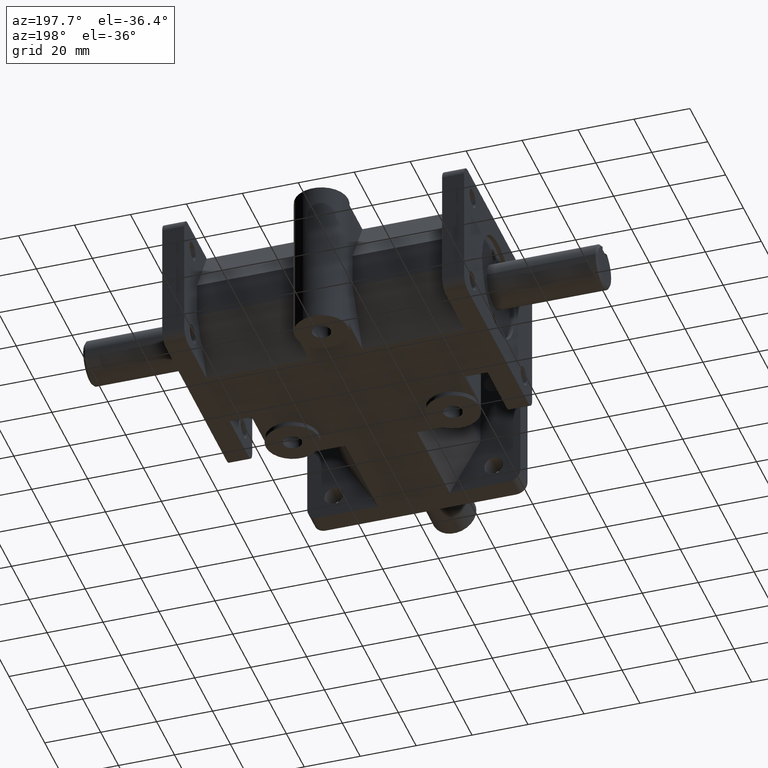
[diagram: clean part render]
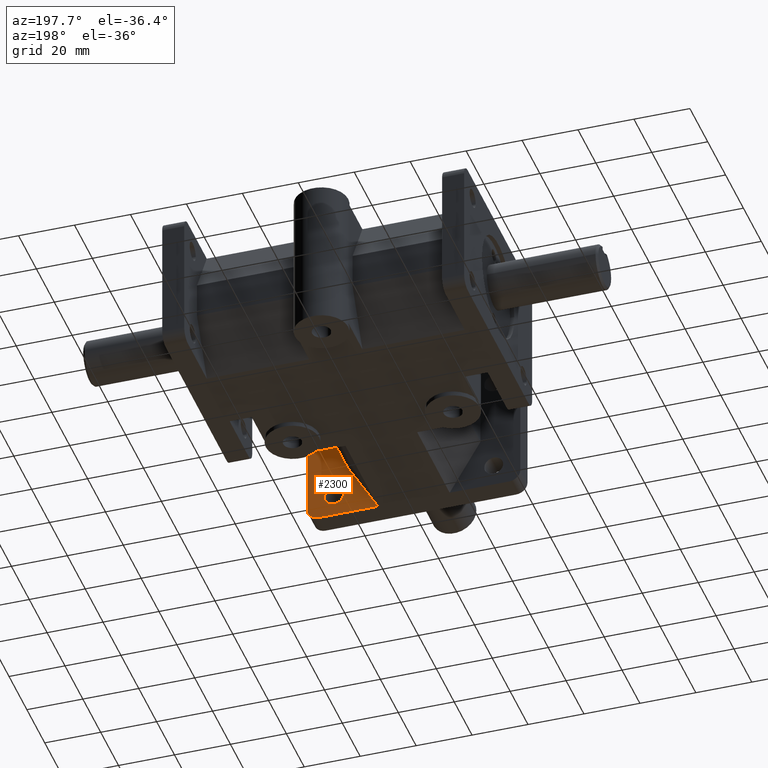
[diagram: same view with one face highlighted and labeled with its STEP entity id]
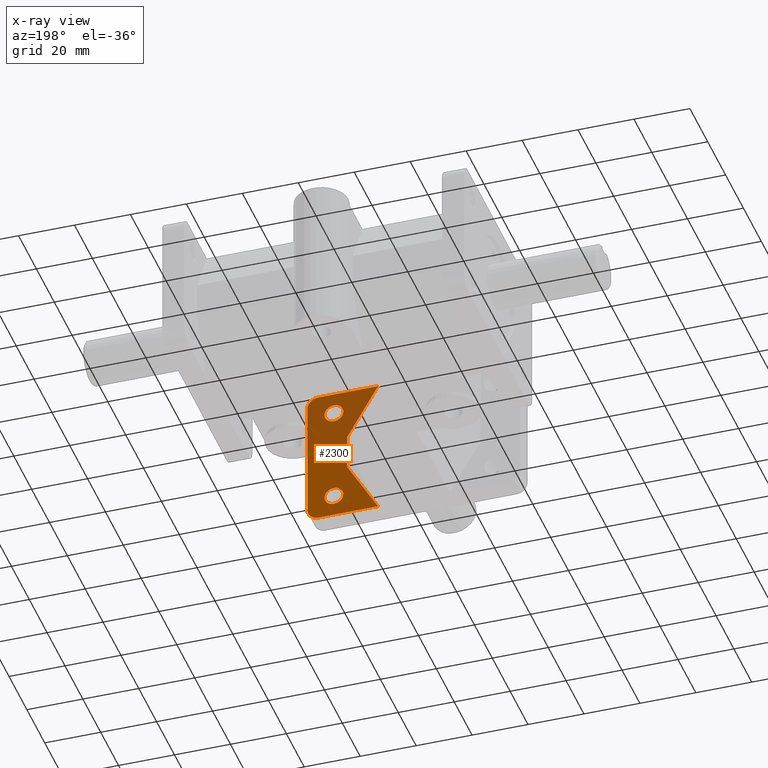
[diagram: x-ray of the same camera — body ghosted, the highlighted face saturated]
A machine part, auxiliary view. The second image highlights one B-rep face of the part: STEP entity #2300.
The next image is the same camera in x-ray: the body ghosted, the highlighted face saturated — about 46% of this face is hidden behind the body in this view.
In plain terms, the highlighted planar face has unit normal (0, 1, 0).
Its self-contained STEP definition (entity closure, byte-faithful):
#36=FACE_BOUND('',#322,.T.);
#37=FACE_BOUND('',#323,.T.);
#79=PLANE('',#2490);
#181=FACE_OUTER_BOUND('',#321,.T.);
#321=EDGE_LOOP('',(#1669,#1670,#1671,#1672,#1673,#1674,#1675,#1676));
#322=EDGE_LOOP('',(#1677));
#323=EDGE_LOOP('',(#1678));
#491=LINE('',#3536,#713);
#492=LINE('',#3538,#714);
#493=LINE('',#3540,#715);
#494=LINE('',#3542,#716);
#495=LINE('',#3543,#717);
#496=LINE('',#3544,#718);
#713=VECTOR('',#2846,1.);
#714=VECTOR('',#2847,0.999999999999999);
#715=VECTOR('',#2848,1.);
#716=VECTOR('',#2849,0.999999999999999);
#717=VECTOR('',#2850,1.);
#718=VECTOR('',#2851,1.);
#922=CIRCLE('',#2459,0.16);
#924=CIRCLE('',#2462,0.16);
#943=CIRCLE('',#2491,0.1325);
#944=CIRCLE('',#2492,0.1325);
#1033=VERTEX_POINT('',#3433);
#1034=VERTEX_POINT('',#3435);
#1037=VERTEX_POINT('',#3442);
#1038=VERTEX_POINT('',#3444);
#1077=VERTEX_POINT('',#3535);
#1078=VERTEX_POINT('',#3537);
#1079=VERTEX_POINT('',#3539);
#1080=VERTEX_POINT('',#3541);
#1081=VERTEX_POINT('',#3545);
#1082=VERTEX_POINT('',#3547);
#1263=EDGE_CURVE('',#1033,#1034,#922,.T.);
#1267=EDGE_CURVE('',#1037,#1038,#924,.T.);
#1309=EDGE_CURVE('',#1033,#1077,#491,.T.);
#1310=EDGE_CURVE('',#1078,#1077,#492,.F.);
#1311=EDGE_CURVE('',#1079,#1078,#493,.T.);
#1312=EDGE_CURVE('',#1080,#1079,#494,.F.);
#1313=EDGE_CURVE('',#1080,#1038,#495,.T.);
#1314=EDGE_CURVE('',#1034,#1037,#496,.T.);
#1315=EDGE_CURVE('',#1081,#1081,#943,.T.);
#1316=EDGE_CURVE('',#1082,#1082,#944,.T.);
#1669=ORIENTED_EDGE('',*,*,#1263,.F.);
#1670=ORIENTED_EDGE('',*,*,#1309,.T.);
#1671=ORIENTED_EDGE('',*,*,#1310,.F.);
#1672=ORIENTED_EDGE('',*,*,#1311,.F.);
#1673=ORIENTED_EDGE('',*,*,#1312,.F.);
#1674=ORIENTED_EDGE('',*,*,#1313,.T.);
#1675=ORIENTED_EDGE('',*,*,#1267,.F.);
#1676=ORIENTED_EDGE('',*,*,#1314,.F.);
#1677=ORIENTED_EDGE('',*,*,#1315,.T.);
#1678=ORIENTED_EDGE('',*,*,#1316,.T.);
#2300=ADVANCED_FACE('',(#181,#36,#37),#79,.T.);
#2459=AXIS2_PLACEMENT_3D('',#3436,#2757,#2758);
#2462=AXIS2_PLACEMENT_3D('',#3445,#2765,#2766);
#2490=AXIS2_PLACEMENT_3D('',#3534,#2844,#2845);
#2491=AXIS2_PLACEMENT_3D('',#3546,#2852,#2853);
#2492=AXIS2_PLACEMENT_3D('',#3548,#2854,#2855);
#2757=DIRECTION('center_axis',(0.,-1.,0.));
#2758=DIRECTION('ref_axis',(0.707106781186548,0.,-0.707106781186548));
#2765=DIRECTION('center_axis',(0.,-1.,0.));
#2766=DIRECTION('ref_axis',(0.707106781186548,0.,0.707106781186548));
#2844=DIRECTION('center_axis',(0.,1.,0.));
#2845=DIRECTION('ref_axis',(0.,0.,-1.));
#2846=DIRECTION('',(-1.,0.,0.));
#2847=DIRECTION('',(0.500000258168844,0.,0.866025254730536));
#2848=DIRECTION('',(0.,0.,-1.));
#2849=DIRECTION('',(-0.500000258168844,0.,0.866025254730536));
#2850=DIRECTION('',(1.,0.,0.));
#2851=DIRECTION('',(0.,0.,1.));
#2852=DIRECTION('center_axis',(0.,-1.,0.));
#2853=DIRECTION('ref_axis',(1.,0.,0.));
#2854=DIRECTION('center_axis',(0.,-1.,0.));
#2855=DIRECTION('ref_axis',(1.,0.,0.));
#3433=CARTESIAN_POINT('',(1.34,0.31,-1.));
#3435=CARTESIAN_POINT('',(1.5,0.31,-0.84));
#3436=CARTESIAN_POINT('Origin',(1.34,0.31,-0.84));
#3442=CARTESIAN_POINT('',(1.5,0.31,0.84));
#3444=CARTESIAN_POINT('',(1.34,0.31,1.));
#3445=CARTESIAN_POINT('Origin',(1.34,0.31,0.84));
#3534=CARTESIAN_POINT('Origin',(1.5,0.31,0.));
#3535=CARTESIAN_POINT('',(0.504487,0.31,-1.));
#3536=CARTESIAN_POINT('',(0.75,0.31,-1.));
#3537=CARTESIAN_POINT('',(0.9375,0.31,-0.25));
#3538=CARTESIAN_POINT('',(0.953685928978257,0.31,-0.221965167942549));
#3539=CARTESIAN_POINT('',(0.9375,0.31,0.25));
#3540=CARTESIAN_POINT('',(0.9375,0.31,0.));
#3541=CARTESIAN_POINT('',(0.504487,0.31,1.));
#3542=CARTESIAN_POINT('',(0.953685928978257,0.31,0.221965167942549));
#3543=CARTESIAN_POINT('',(0.9375,0.31,1.));
#3544=CARTESIAN_POINT('',(1.5,0.31,0.));
#3545=CARTESIAN_POINT('',(0.9925,0.31,-0.6875));
#3546=CARTESIAN_POINT('Origin',(1.125,0.31,-0.6875));
#3547=CARTESIAN_POINT('',(0.9925,0.31,0.6875));
#3548=CARTESIAN_POINT('Origin',(1.125,0.31,0.6875));